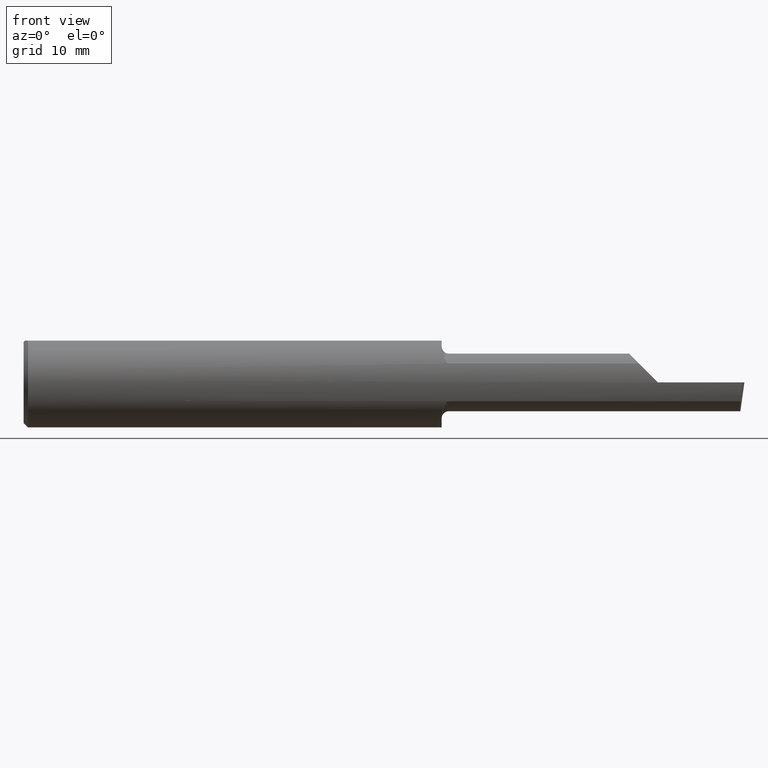
[diagram: clean part render]
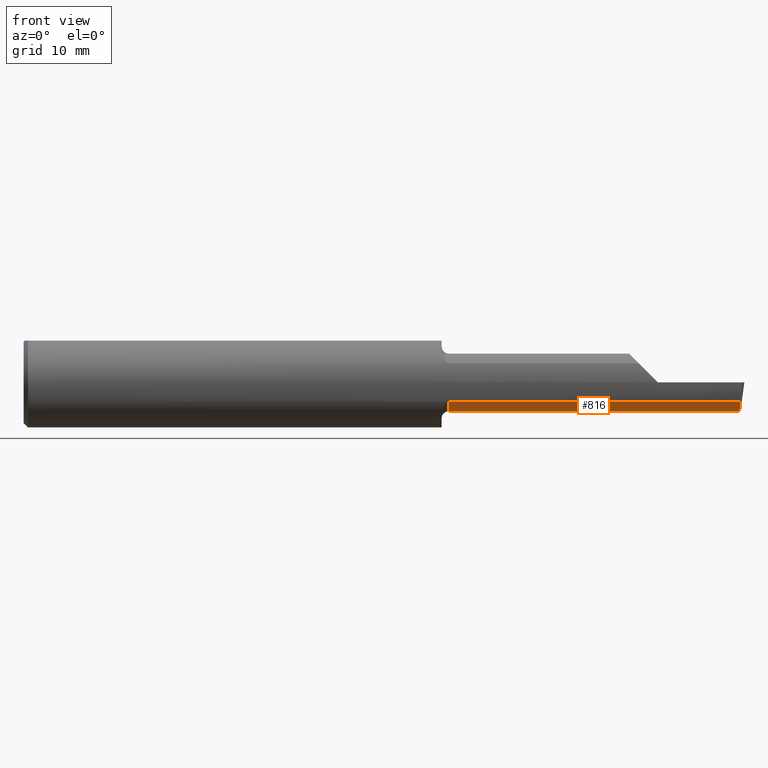
[diagram: same view with one face highlighted and labeled with its STEP entity id]
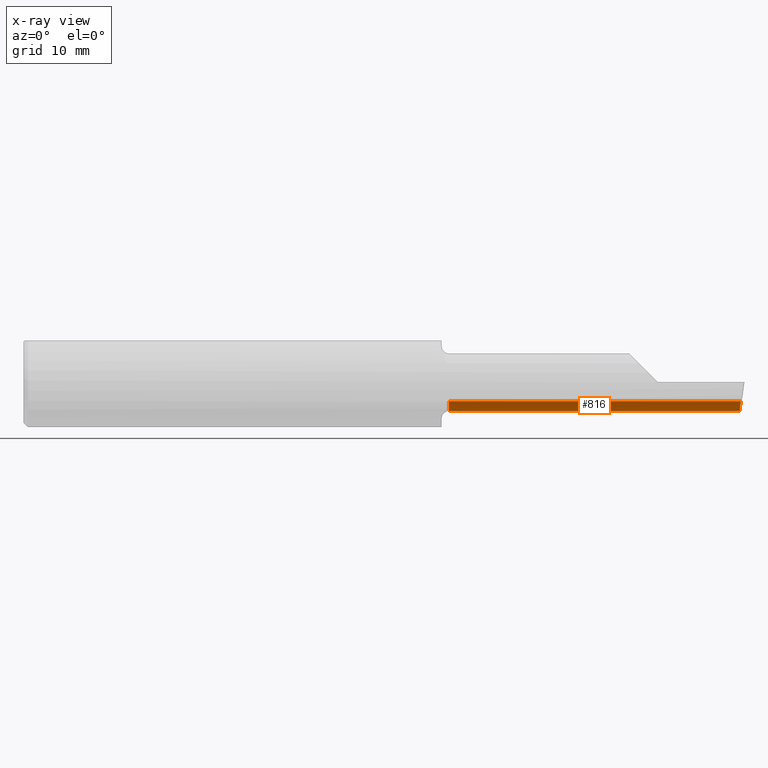
[diagram: x-ray of the same camera — body ghosted, the highlighted face saturated]
A machine part, front view. The second image highlights one B-rep face of the part: STEP entity #816.
The next image is the same camera in x-ray: the body ghosted, the highlighted face saturated — about 0% of this face is hidden behind the body in this view.
In plain terms, the highlighted cylindrical surface (edge-blend (fillet) strip) has radius 2.54 mm, axis along (-1, -0, -0).
Its self-contained STEP definition (entity closure, byte-faithful):
#2 = CARTESIAN_POINT ( 'NONE',  ( 46.73599999999999710, -3.599887049924355154, -1.661794942640913098 ) ) ;
#4 = CARTESIAN_POINT ( 'NONE',  ( 37.46499999999999631, -3.599887049924355154, -1.661794942640913098 ) ) ;
#6 = AXIS2_PLACEMENT_3D ( 'NONE', #203, #598, #111 ) ;
#41 = CARTESIAN_POINT ( 'NONE',  ( 63.11822282597120903, -1.678939999999999433, -2.540000000000000480 ) ) ;
#42 = ORIENTED_EDGE ( 'NONE', *, *, #630, .T. ) ;
#102 = DIRECTION ( 'NONE',  ( 0.000000000000000000, 0.000000000000000000, -1.000000000000000000 ) ) ;
#111 = DIRECTION ( 'NONE',  ( 0.000000000000000000, 0.000000000000000000, 1.000000000000000000 ) ) ;
#117 = FACE_OUTER_BOUND ( 'NONE', #438, .T. ) ;
#203 = CARTESIAN_POINT ( 'NONE',  ( 36.82999999999999829, -1.678939999999999433, 0.000000000000000000 ) ) ;
#269 = VERTEX_POINT ( 'NONE', #403 ) ;
#282 = LINE ( 'NONE', #304, #445 ) ;
#304 = CARTESIAN_POINT ( 'NONE',  ( 36.82999999999999829, -1.678939999999999211, -2.540000000000000036 ) ) ;
#308 = CARTESIAN_POINT ( 'NONE',  ( 37.46499999999999631, -1.678939999999999433, 0.000000000000000000 ) ) ;
#331 =( BOUNDED_CURVE ( )  B_SPLINE_CURVE ( 3, ( #663, #1243, #1133, #579 ),
 .UNSPECIFIED., .F., .T. ) 
 B_SPLINE_CURVE_WITH_KNOTS ( ( 4, 4 ),
 ( 5.652899091607062054, 6.510504952072833085 ),
 .UNSPECIFIED. ) 
 CURVE ( )  GEOMETRIC_REPRESENTATION_ITEM ( )  RATIONAL_B_SPLINE_CURVE ( ( 1.000000000000000000, 0.9396427478180651160, 0.9396427478180651160, 1.000000000000000000 ) ) 
 REPRESENTATION_ITEM ( '' )  );
#342 = CARTESIAN_POINT ( 'NONE',  ( 37.46499999999999631, -1.678939999999999211, -2.540000000000000036 ) ) ;
#403 = CARTESIAN_POINT ( 'NONE',  ( 63.16765444560877540, -3.599887049924355598, -1.661794942640913542 ) ) ;
#438 = EDGE_LOOP ( 'NONE', ( #852, #503, #909, #42, #924 ) ) ;
#445 = VECTOR ( 'NONE', #677, 1000.000000000000000 ) ;
#503 = ORIENTED_EDGE ( 'NONE', *, *, #781, .F. ) ;
#531 = EDGE_CURVE ( 'NONE', #1137, #998, #282, .T. ) ;
#579 = CARTESIAN_POINT ( 'NONE',  ( 63.11822282597120903, -1.678939999999999433, -2.540000000000000480 ) ) ;
#592 = VECTOR ( 'NONE', #795, 1000.000000000000000 ) ;
#598 = DIRECTION ( 'NONE',  ( -1.000000000000000000, -0.000000000000000000, -0.000000000000000000 ) ) ;
#608 = VECTOR ( 'NONE', #701, 1000.000000000000000 ) ;
#630 = EDGE_CURVE ( 'NONE', #269, #1234, #1072, .T. ) ;
#663 = CARTESIAN_POINT ( 'NONE',  ( 63.16765444560877540, -3.599887049924355598, -1.661794942640913542 ) ) ;
#677 = DIRECTION ( 'NONE',  ( -1.000000000000000000, -0.000000000000000000, -0.000000000000000000 ) ) ;
#701 = DIRECTION ( 'NONE',  ( -1.000000000000000000, -0.000000000000000000, -0.000000000000000000 ) ) ;
#760 = CARTESIAN_POINT ( 'NONE',  ( 56.64199999999999591, -1.678939999999999433, -2.540000000000000480 ) ) ;
#781 = EDGE_CURVE ( 'NONE', #974, #1137, #1076, .T. ) ;
#795 = DIRECTION ( 'NONE',  ( -1.000000000000000000, -0.000000000000000000, -0.000000000000000000 ) ) ;
#816 = ADVANCED_FACE ( 'NONE', ( #117 ), #1062, .T. ) ;
#828 = EDGE_CURVE ( 'NONE', #1234, #998, #832, .T. ) ;
#832 = CIRCLE ( 'NONE', #1071, 2.540000000000000036 ) ;
#852 = ORIENTED_EDGE ( 'NONE', *, *, #531, .F. ) ;
#881 = DIRECTION ( 'NONE',  ( 1.000000000000000000, 0.000000000000000000, 0.000000000000000000 ) ) ;
#909 = ORIENTED_EDGE ( 'NONE', *, *, #1120, .F. ) ;
#924 = ORIENTED_EDGE ( 'NONE', *, *, #828, .T. ) ;
#974 = VERTEX_POINT ( 'NONE', #41 ) ;
#998 = VERTEX_POINT ( 'NONE', #342 ) ;
#1062 = CYLINDRICAL_SURFACE ( 'NONE', #6, 2.540000000000000036 ) ;
#1071 = AXIS2_PLACEMENT_3D ( 'NONE', #308, #881, #102 ) ;
#1072 = LINE ( 'NONE', #2, #608 ) ;
#1076 = LINE ( 'NONE', #1185, #592 ) ;
#1120 = EDGE_CURVE ( 'NONE', #269, #974, #331, .T. ) ;
#1133 = CARTESIAN_POINT ( 'NONE',  ( 63.09847522314641566, -2.428222866824018222, -2.540000000000000480 ) ) ;
#1137 = VERTEX_POINT ( 'NONE', #760 ) ;
#1185 = CARTESIAN_POINT ( 'NONE',  ( 63.50000000000002842, -1.678939999999999433, -2.540000000000000480 ) ) ;
#1234 = VERTEX_POINT ( 'NONE', #4 ) ;
#1243 = CARTESIAN_POINT ( 'NONE',  ( 63.11601083078465990, -3.109668751225285632, -2.228461364918260301 ) ) ;